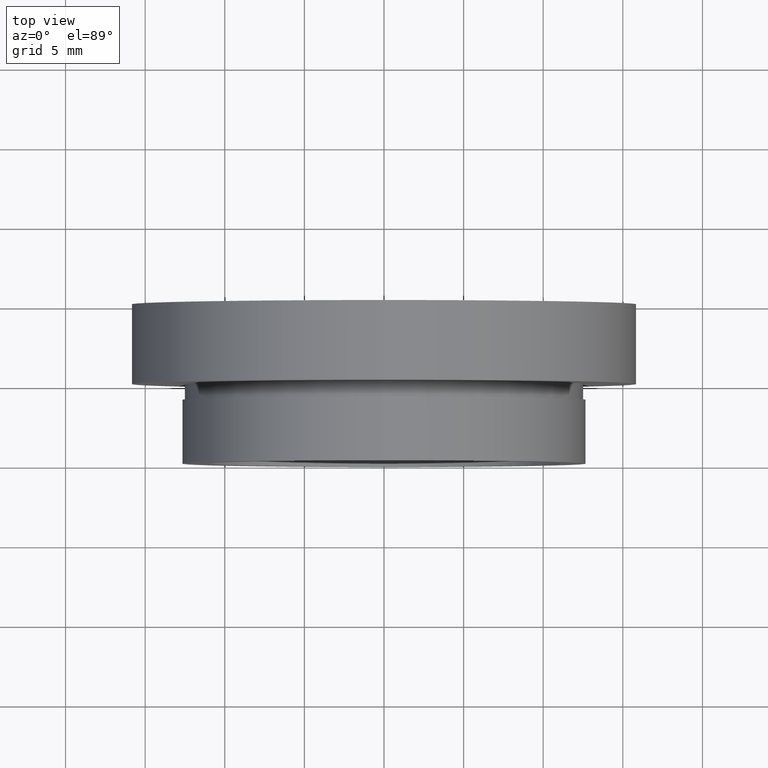
[diagram: clean part render]
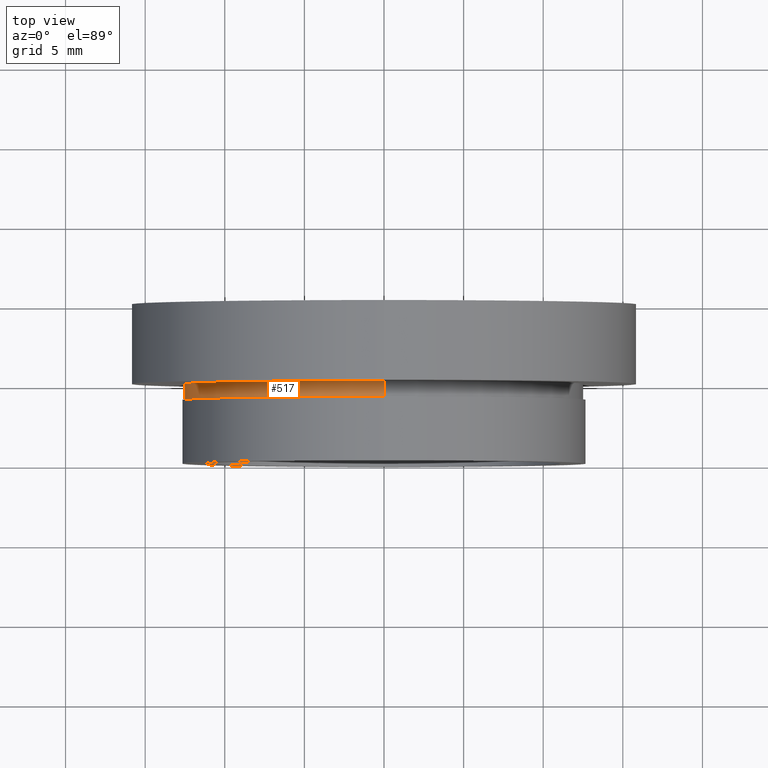
[diagram: same view with one face highlighted and labeled with its STEP entity id]
A machine part, top view. The second image highlights one B-rep face of the part: STEP entity #517.
In plain terms, the highlighted cylindrical surface (partial cylindrical patch) has radius 12.55 mm, axis along (-0, 1, -0).
Its self-contained STEP definition (entity closure, byte-faithful):
#13 = EDGE_CURVE ( 'NONE', #619, #624, #74, .T. ) ;
#15 = CARTESIAN_POINT ( 'NONE',  ( 1.536931732929928400E-015, 4.000000000000000000, -12.55000000000000100 ) ) ;
#26 = CIRCLE ( 'NONE', #228, 12.55000000000000100 ) ;
#57 = VECTOR ( 'NONE', #376, 1000.000000000000000 ) ;
#73 = AXIS2_PLACEMENT_3D ( 'NONE', #191, #421, #363 ) ;
#74 = LINE ( 'NONE', #396, #57 ) ;
#76 = EDGE_LOOP ( 'NONE', ( #175, #476, #488, #414 ) ) ;
#91 = EDGE_CURVE ( 'NONE', #624, #589, #26, .T. ) ;
#123 = FACE_OUTER_BOUND ( 'NONE', #76, .T. ) ;
#161 = DIRECTION ( 'NONE',  ( -0.0000000000000000000, 1.000000000000000000, -0.0000000000000000000 ) ) ;
#175 = ORIENTED_EDGE ( 'NONE', *, *, #13, .F. ) ;
#191 = CARTESIAN_POINT ( 'NONE',  ( 0.0000000000000000000, 13.74468085106383300, 0.0000000000000000000 ) ) ;
#228 = AXIS2_PLACEMENT_3D ( 'NONE', #407, #530, #236 ) ;
#236 = DIRECTION ( 'NONE',  ( 0.0000000000000000000, 0.0000000000000000000, 1.000000000000000000 ) ) ;
#259 = CARTESIAN_POINT ( 'NONE',  ( 1.536931732929928400E-015, 5.000000000000000900, -12.55000000000000100 ) ) ;
#261 = DIRECTION ( 'NONE',  ( 0.0000000000000000000, 0.0000000000000000000, 1.000000000000000000 ) ) ;
#317 = CARTESIAN_POINT ( 'NONE',  ( 0.0000000000000000000, 4.000000000000000000, 0.0000000000000000000 ) ) ;
#351 = VERTEX_POINT ( 'NONE', #498 ) ;
#352 = CARTESIAN_POINT ( 'NONE',  ( 0.0000000000000000000, 13.74468085106383300, 12.55000000000000100 ) ) ;
#363 = DIRECTION ( 'NONE',  ( 0.0000000000000000000, 0.0000000000000000000, 1.000000000000000000 ) ) ;
#376 = DIRECTION ( 'NONE',  ( -0.0000000000000000000, 1.000000000000000000, -0.0000000000000000000 ) ) ;
#396 = CARTESIAN_POINT ( 'NONE',  ( 1.536931732929928400E-015, 13.74468085106383300, -12.55000000000000100 ) ) ;
#398 = LINE ( 'NONE', #352, #446 ) ;
#407 = CARTESIAN_POINT ( 'NONE',  ( 0.0000000000000000000, 5.000000000000000900, 0.0000000000000000000 ) ) ;
#414 = ORIENTED_EDGE ( 'NONE', *, *, #91, .F. ) ;
#419 = CIRCLE ( 'NONE', #561, 12.55000000000000100 ) ;
#421 = DIRECTION ( 'NONE',  ( -0.0000000000000000000, 1.000000000000000000, -0.0000000000000000000 ) ) ;
#446 = VECTOR ( 'NONE', #161, 1000.000000000000000 ) ;
#473 = CARTESIAN_POINT ( 'NONE',  ( 0.0000000000000000000, 5.000000000000000900, 12.55000000000000100 ) ) ;
#476 = ORIENTED_EDGE ( 'NONE', *, *, #578, .T. ) ;
#488 = ORIENTED_EDGE ( 'NONE', *, *, #622, .T. ) ;
#498 = CARTESIAN_POINT ( 'NONE',  ( 0.0000000000000000000, 4.000000000000000000, 12.55000000000000100 ) ) ;
#517 = ADVANCED_FACE ( 'NONE', ( #123 ), #573, .T. ) ;
#530 = DIRECTION ( 'NONE',  ( -0.0000000000000000000, 1.000000000000000000, -0.0000000000000000000 ) ) ;
#561 = AXIS2_PLACEMENT_3D ( 'NONE', #317, #603, #261 ) ;
#573 = CYLINDRICAL_SURFACE ( 'NONE', #73, 12.55000000000000100 ) ;
#578 = EDGE_CURVE ( 'NONE', #619, #351, #419, .T. ) ;
#589 = VERTEX_POINT ( 'NONE', #473 ) ;
#603 = DIRECTION ( 'NONE',  ( -0.0000000000000000000, 1.000000000000000000, -0.0000000000000000000 ) ) ;
#619 = VERTEX_POINT ( 'NONE', #15 ) ;
#622 = EDGE_CURVE ( 'NONE', #351, #589, #398, .T. ) ;
#624 = VERTEX_POINT ( 'NONE', #259 ) ;